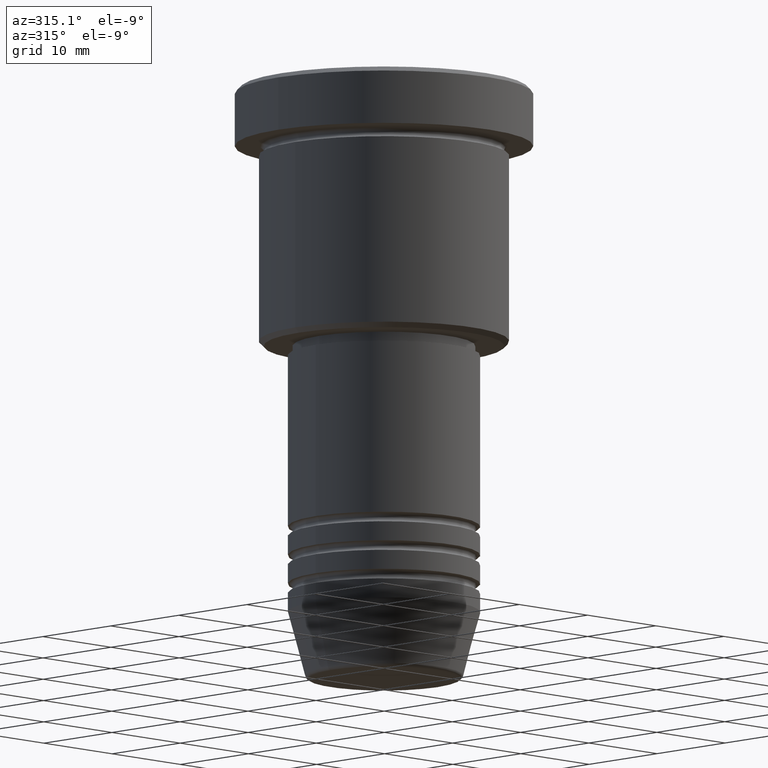
[diagram: clean part render]
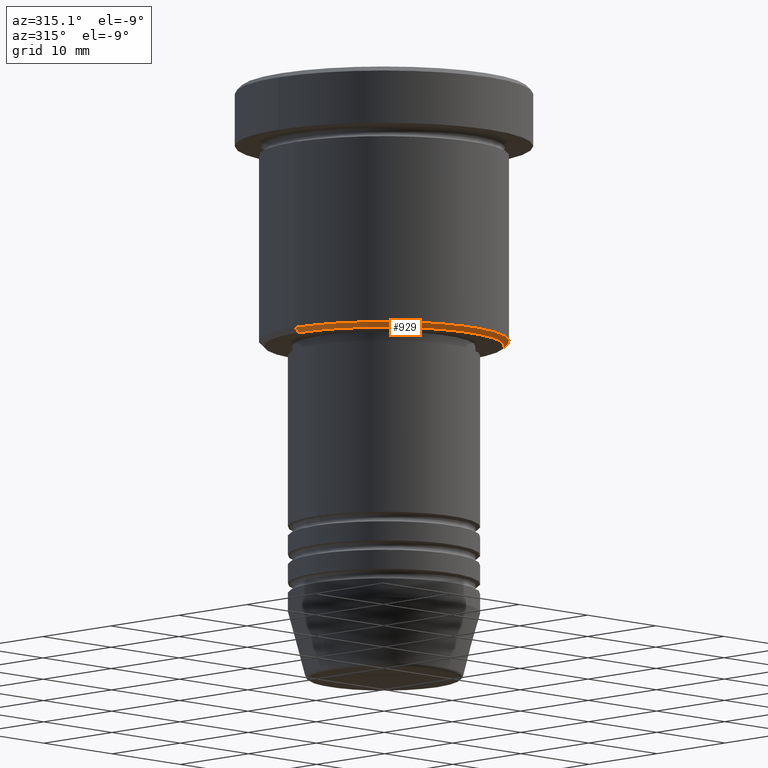
[diagram: same view with one face highlighted and labeled with its STEP entity id]
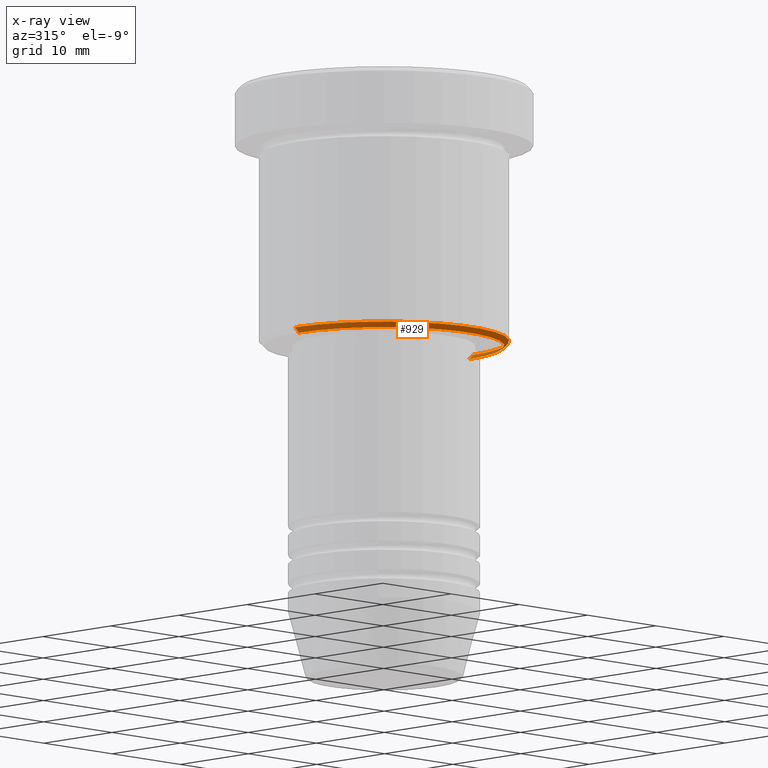
[diagram: x-ray of the same camera — body ghosted, the highlighted face saturated]
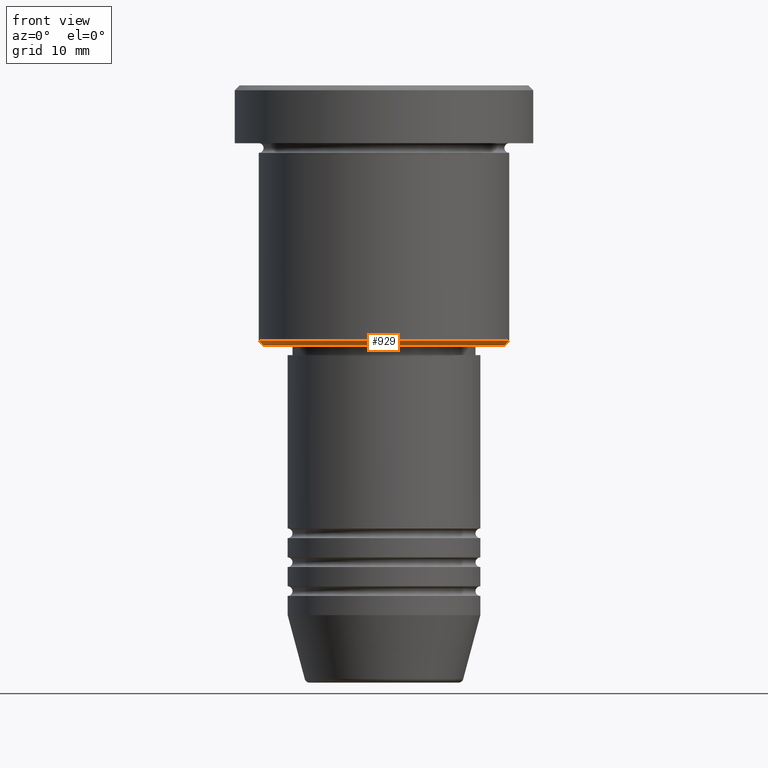
[diagram: same view with one face highlighted and labeled with its STEP entity id]
A machine part, auxiliary view. The second image highlights one B-rep face of the part: STEP entity #929.
The next image is the same camera in x-ray: the body ghosted, the highlighted face saturated — about 2% of this face is hidden behind the body in this view.
A second angle (front view) of the same face is appended — the face is thin or edge-on in the first view.
In plain terms, the highlighted conical surface has half-angle 45 deg.
Its self-contained STEP definition (entity closure, byte-faithful):
#62 = DIRECTION ( 'NONE',  ( 1.000000000000000000, 0.000000000000000000, 0.000000000000000000 ) ) ;
#77 = DIRECTION ( 'NONE',  ( -0.7071067811865439090, 8.659560562354889717E-17, 0.7071067811865512365 ) ) ;
#121 = EDGE_CURVE ( 'NONE', #1117, #1074, #370, .T. ) ;
#155 = CARTESIAN_POINT ( 'NONE',  ( 0.000000000000000000, 0.000000000000000000, -26.49999999999998934 ) ) ;
#160 = CARTESIAN_POINT ( 'NONE',  ( 13.00000000000000000, 0.000000000000000000, -26.49999999999998934 ) ) ;
#201 = CIRCLE ( 'NONE', #864, 12.49999999999999645 ) ;
#232 = CARTESIAN_POINT ( 'NONE',  ( -12.49999999999999645, 1.561424668912875111E-15, -26.99999999999999645 ) ) ;
#239 = AXIS2_PLACEMENT_3D ( 'NONE', #155, #773, #62 ) ;
#256 = CARTESIAN_POINT ( 'NONE',  ( -13.00000000000000000, 1.592040838891559095E-15, -26.49999999999998934 ) ) ;
#274 = DIRECTION ( 'NONE',  ( -1.000000000000000000, 0.000000000000000000, 0.000000000000000000 ) ) ;
#310 = CARTESIAN_POINT ( 'NONE',  ( 12.49999999999999645, 0.000000000000000000, -26.99999999999999645 ) ) ;
#344 = LINE ( 'NONE', #256, #1102 ) ;
#370 = CIRCLE ( 'NONE', #572, 13.00000000000000000 ) ;
#388 = DIRECTION ( 'NONE',  ( -1.000000000000000000, 0.000000000000000000, 0.000000000000000000 ) ) ;
#400 = VERTEX_POINT ( 'NONE', #310 ) ;
#410 = FACE_OUTER_BOUND ( 'NONE', #759, .T. ) ;
#478 = CARTESIAN_POINT ( 'NONE',  ( 0.000000000000000000, 0.000000000000000000, -26.49999999999998934 ) ) ;
#513 = LINE ( 'NONE', #160, #889 ) ;
#564 = CARTESIAN_POINT ( 'NONE',  ( 0.000000000000000000, 0.000000000000000000, -26.99999999999999645 ) ) ;
#572 = AXIS2_PLACEMENT_3D ( 'NONE', #478, #648, #274 ) ;
#632 = CARTESIAN_POINT ( 'NONE',  ( -13.00000000000000000, 1.592040838891559095E-15, -26.49999999999998934 ) ) ;
#648 = DIRECTION ( 'NONE',  ( -0.000000000000000000, -0.000000000000000000, 1.000000000000000000 ) ) ;
#693 = CONICAL_SURFACE ( 'NONE', #239, 13.00000000000000000, 0.7853981633974431720 ) ;
#703 = DIRECTION ( 'NONE',  ( 0.7071067811865439090, 0.000000000000000000, 0.7071067811865512365 ) ) ;
#707 = CARTESIAN_POINT ( 'NONE',  ( 13.00000000000000000, 0.000000000000000000, -26.49999999999998934 ) ) ;
#759 = EDGE_LOOP ( 'NONE', ( #974, #1170, #1004, #899 ) ) ;
#773 = DIRECTION ( 'NONE',  ( -0.000000000000000000, -0.000000000000000000, 1.000000000000000000 ) ) ;
#856 = EDGE_CURVE ( 'NONE', #933, #1117, #344, .T. ) ;
#864 = AXIS2_PLACEMENT_3D ( 'NONE', #564, #951, #388 ) ;
#889 = VECTOR ( 'NONE', #703, 1000.000000000000000 ) ;
#899 = ORIENTED_EDGE ( 'NONE', *, *, #121, .F. ) ;
#929 = ADVANCED_FACE ( 'NONE', ( #410 ), #693, .T. ) ;
#933 = VERTEX_POINT ( 'NONE', #232 ) ;
#935 = EDGE_CURVE ( 'NONE', #400, #1074, #513, .T. ) ;
#951 = DIRECTION ( 'NONE',  ( 0.000000000000000000, 0.000000000000000000, -1.000000000000000000 ) ) ;
#974 = ORIENTED_EDGE ( 'NONE', *, *, #856, .F. ) ;
#1004 = ORIENTED_EDGE ( 'NONE', *, *, #935, .T. ) ;
#1074 = VERTEX_POINT ( 'NONE', #707 ) ;
#1102 = VECTOR ( 'NONE', #77, 1000.000000000000000 ) ;
#1117 = VERTEX_POINT ( 'NONE', #632 ) ;
#1158 = EDGE_CURVE ( 'NONE', #400, #933, #201, .T. ) ;
#1170 = ORIENTED_EDGE ( 'NONE', *, *, #1158, .F. ) ;